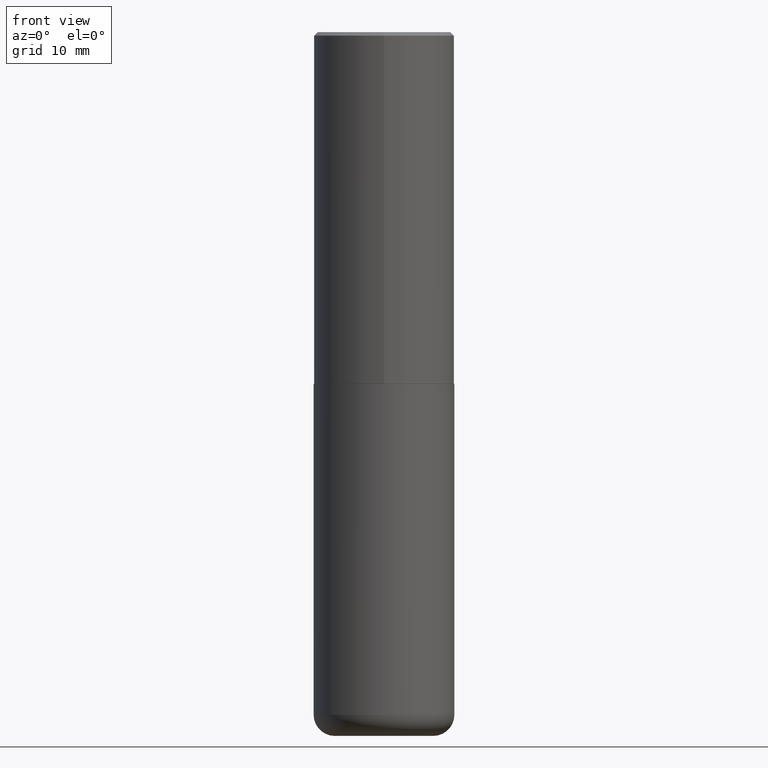
[diagram: clean part render]
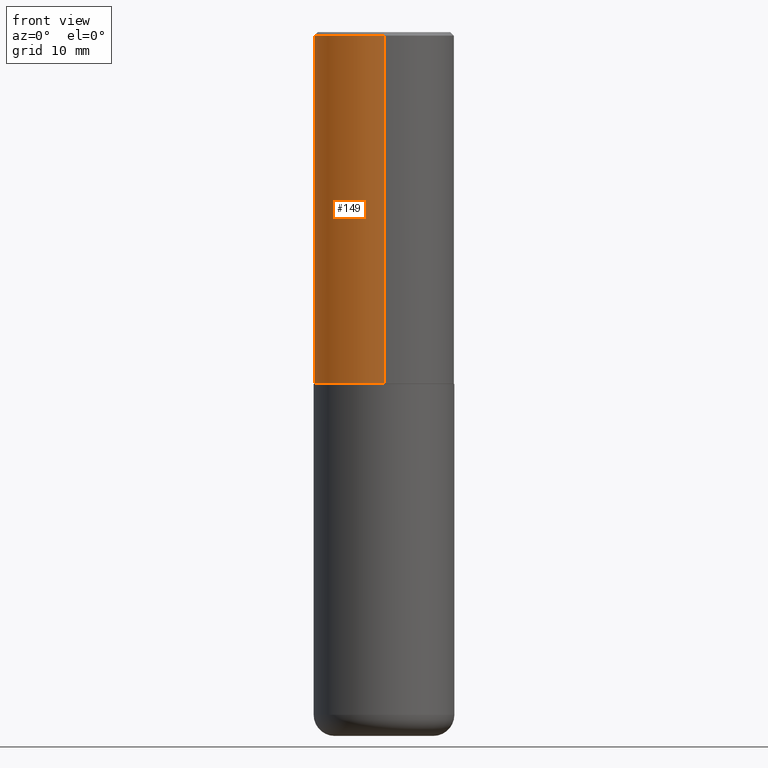
[diagram: same view with one face highlighted and labeled with its STEP entity id]
A machine part, front view. The second image highlights one B-rep face of the part: STEP entity #149.
In plain terms, the highlighted cylindrical surface (partial cylindrical patch) has radius 10 mm, axis along (-0, 0, 1).
Its self-contained STEP definition (entity closure, byte-faithful):
#7 = ORIENTED_EDGE ( 'NONE', *, *, #218, .F. ) ;
#9 = CARTESIAN_POINT ( 'NONE',  ( 2.797406750687515181E-15, 0.3937000000000001609, -1.373224176831512065E-15 ) ) ;
#20 = DIRECTION ( 'NONE',  ( -2.447902336346030930E-29, 3.487996385144809755E-15, 1.000000000000000000 ) ) ;
#56 = CARTESIAN_POINT ( 'NONE',  ( -2.700978061722651252E-15, -0.3937000000000001054, -0.01999999999999870978 ) ) ;
#71 = VERTEX_POINT ( 'NONE', #413 ) ;
#75 = AXIS2_PLACEMENT_3D ( 'NONE', #266, #170, #203 ) ;
#77 = CYLINDRICAL_SURFACE ( 'NONE', #75, 0.3937000000000001609 ) ;
#83 = DIRECTION ( 'NONE',  ( -6.982962677686265133E-15, -1.000000000000000000, 3.491137977679279424E-15 ) ) ;
#85 = CARTESIAN_POINT ( 'NONE',  ( 4.816247846760815671E-29, -6.862632887772413316E-15, -1.967500000000000027 ) ) ;
#95 = CARTESIAN_POINT ( 'NONE',  ( -2.749192406205036674E-15, -0.3937000000000070998, -1.967499999999998694 ) ) ;
#113 = DIRECTION ( 'NONE',  ( -2.447902336346030930E-29, 3.487996385144809360E-15, 1.000000000000000000 ) ) ;
#146 = AXIS2_PLACEMENT_3D ( 'NONE', #85, #20, #381 ) ;
#149 = ADVANCED_FACE ( 'NONE', ( #302 ), #77, .T. ) ;
#165 = VECTOR ( 'NONE', #113, 39.37007874015748143 ) ;
#170 = DIRECTION ( 'NONE',  ( -2.447902336346030930E-29, 3.487996385144809755E-15, 1.000000000000000000 ) ) ;
#171 = CIRCLE ( 'NONE', #368, 0.3937000000000000499 ) ;
#176 = EDGE_LOOP ( 'NONE', ( #7, #367, #392, #389 ) ) ;
#195 = EDGE_CURVE ( 'NONE', #71, #251, #171, .T. ) ;
#198 = VERTEX_POINT ( 'NONE', #365 ) ;
#203 = DIRECTION ( 'NONE',  ( -6.982962677686265922E-15, -1.000000000000000000, 3.487996385144809360E-15 ) ) ;
#218 = EDGE_CURVE ( 'NONE', #198, #71, #274, .T. ) ;
#241 = DIRECTION ( 'NONE',  ( -2.447902336346030930E-29, 3.487996385144809755E-15, 1.000000000000000000 ) ) ;
#244 = LINE ( 'NONE', #412, #314 ) ;
#245 = DIRECTION ( 'NONE',  ( -2.447902336346030930E-29, 3.487996385144809360E-15, 1.000000000000000000 ) ) ;
#251 = VERTEX_POINT ( 'NONE', #56 ) ;
#266 = CARTESIAN_POINT ( 'NONE',  ( 0.000000000000000000, 0.000000000000000000, 0.000000000000000000 ) ) ;
#274 = LINE ( 'NONE', #9, #165 ) ;
#283 = EDGE_CURVE ( 'NONE', #198, #300, #320, .T. ) ;
#300 = VERTEX_POINT ( 'NONE', #95 ) ;
#302 = FACE_OUTER_BOUND ( 'NONE', #176, .T. ) ;
#314 = VECTOR ( 'NONE', #245, 39.37007874015748143 ) ;
#320 = CIRCLE ( 'NONE', #146, 0.3937000000000002720 ) ;
#324 = EDGE_CURVE ( 'NONE', #300, #251, #244, .T. ) ;
#334 = CARTESIAN_POINT ( 'NONE',  ( 4.895804672692082949E-31, -6.975992770289649092E-17, -0.02000000000000008715 ) ) ;
#365 = CARTESIAN_POINT ( 'NONE',  ( 2.797406750687540030E-15, 0.3936999999999934441, -1.967500000000001359 ) ) ;
#367 = ORIENTED_EDGE ( 'NONE', *, *, #283, .T. ) ;
#368 = AXIS2_PLACEMENT_3D ( 'NONE', #334, #241, #83 ) ;
#381 = DIRECTION ( 'NONE',  ( -6.982962677686265922E-15, -1.000000000000000000, 3.469453890861393601E-15 ) ) ;
#389 = ORIENTED_EDGE ( 'NONE', *, *, #195, .F. ) ;
#392 = ORIENTED_EDGE ( 'NONE', *, *, #324, .T. ) ;
#412 = CARTESIAN_POINT ( 'NONE',  ( -2.749192406205084005E-15, -0.3937000000000001609, 1.373224176831512065E-15 ) ) ;
#413 = CARTESIAN_POINT ( 'NONE',  ( 2.749192406205083217E-15, 0.3936999999999999389, -0.02000000000000146105 ) ) ;